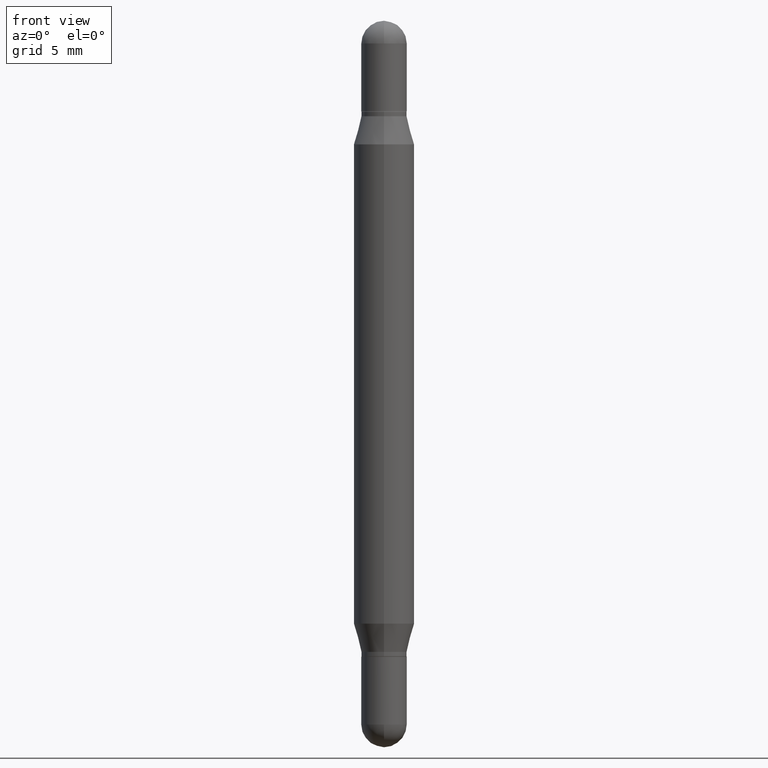
[diagram: clean part render]
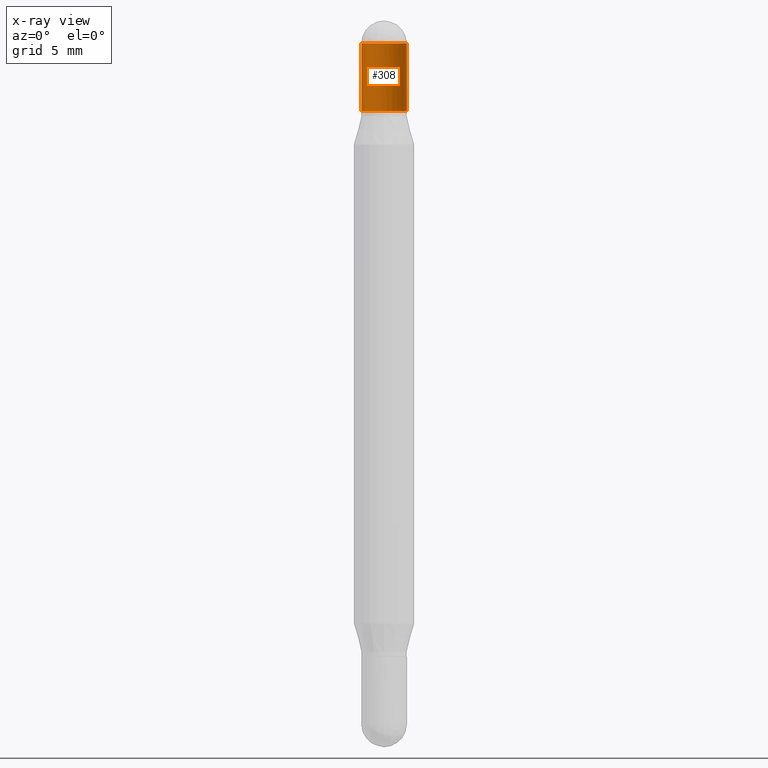
[diagram: x-ray — body ghosted, one internal face saturated and labeled with its STEP entity id]
A machine part, front view, then the same camera in x-ray: the body is ghosted and one INTERNAL B-rep face — a face not visible from any outside direction — is saturated and labeled: STEP entity #308.
In plain terms, the highlighted cylindrical surface (edge-blend (fillet) strip) has radius 1.1913 mm, axis along (-0, -0, -1).
Its self-contained STEP definition (entity closure, byte-faithful):
#2 = VERTEX_POINT ( 'NONE', #241 ) ;
#5 = CARTESIAN_POINT ( 'NONE',  ( 0.04689999999999999725, -7.433420153955320943E-16, -0.04690000000000053154 ) ) ;
#26 = VERTEX_POINT ( 'NONE', #64 ) ;
#59 = EDGE_CURVE ( 'NONE', #2, #26, #930, .T. ) ;
#64 = CARTESIAN_POINT ( 'NONE',  ( -0.04689999999999999725, -9.408370971656128076E-17, -0.04690000000000053154 ) ) ;
#78 = CARTESIAN_POINT ( 'NONE',  ( 3.553510722267622201E-29, -1.720940724002502970E-16, -0.04690000000000053154 ) ) ;
#97 = DIRECTION ( 'NONE',  ( 1.000000000000000000, -6.982962677686266711E-15, 0.000000000000000000 ) ) ;
#109 = CARTESIAN_POINT ( 'NONE',  ( 3.210900542521084585E-29, -6.595880592238425060E-16, -0.1870000000000002216 ) ) ;
#116 = CARTESIAN_POINT ( 'NONE',  ( 0.04689999999999999725, -5.555822803949218252E-15, -1.500000000000000444 ) ) ;
#153 = VERTEX_POINT ( 'NONE', #259 ) ;
#157 = AXIS2_PLACEMENT_3D ( 'NONE', #324, #624, #822 ) ;
#172 = EDGE_CURVE ( 'NONE', #204, #2, #607, .T. ) ;
#187 = VERTEX_POINT ( 'NONE', #671 ) ;
#204 = VERTEX_POINT ( 'NONE', #5 ) ;
#205 = CARTESIAN_POINT ( 'NONE',  ( -0.04689999999999999725, -4.906564498270247118E-15, -1.500000000000000444 ) ) ;
#224 = CYLINDRICAL_SURFACE ( 'NONE', #872, 0.04689999999999999725 ) ;
#228 = ORIENTED_EDGE ( 'NONE', *, *, #59, .F. ) ;
#241 = CARTESIAN_POINT ( 'NONE',  ( 3.217573560955207797E-16, 0.04689999999999990010, -0.04690000000000069114 ) ) ;
#257 = ORIENTED_EDGE ( 'NONE', *, *, #616, .T. ) ;
#259 = CARTESIAN_POINT ( 'NONE',  ( 0.04689999999999999725, -9.870890088073285070E-16, -0.1870000000000002216 ) ) ;
#308 = ADVANCED_FACE ( 'NONE', ( #647 ), #224, .T. ) ;
#312 = DIRECTION ( 'NONE',  ( -2.445468806185136597E-29, -3.479614466977828254E-15, -1.000000000000000000 ) ) ;
#324 = CARTESIAN_POINT ( 'NONE',  ( 3.553510722267622201E-29, -1.720940724002502970E-16, -0.04690000000000053154 ) ) ;
#345 = DIRECTION ( 'NONE',  ( 2.445468806185136597E-29, 3.479614466977828254E-15, 1.000000000000000000 ) ) ;
#391 = EDGE_CURVE ( 'NONE', #26, #187, #468, .T. ) ;
#459 = DIRECTION ( 'NONE',  ( -2.445468806185136877E-29, -3.479614466977828648E-15, -1.000000000000000000 ) ) ;
#461 = CIRCLE ( 'NONE', #891, 0.04689999999999999725 ) ;
#468 = LINE ( 'NONE', #205, #564 ) ;
#528 = AXIS2_PLACEMENT_3D ( 'NONE', #78, #345, #933 ) ;
#559 = DIRECTION ( 'NONE',  ( 1.000000000000000000, -6.982962677686277755E-15, 0.000000000000000000 ) ) ;
#564 = VECTOR ( 'NONE', #718, 39.37007874015748143 ) ;
#593 = ORIENTED_EDGE ( 'NONE', *, *, #172, .F. ) ;
#607 = CIRCLE ( 'NONE', #528, 0.04689999999999999725 ) ;
#616 = EDGE_CURVE ( 'NONE', #153, #187, #461, .T. ) ;
#624 = DIRECTION ( 'NONE',  ( 2.445468806185136597E-29, 3.479614466977828254E-15, 1.000000000000000000 ) ) ;
#632 = CARTESIAN_POINT ( 'NONE',  ( 0.000000000000000000, -5.228321854365732350E-15, -1.500000000000000444 ) ) ;
#647 = FACE_OUTER_BOUND ( 'NONE', #657, .T. ) ;
#651 = LINE ( 'NONE', #116, #677 ) ;
#657 = EDGE_LOOP ( 'NONE', ( #860, #228, #593, #1106, #257 ) ) ;
#671 = CARTESIAN_POINT ( 'NONE',  ( -0.04689999999999999725, -9.408370971656158891E-17, -0.1870000000000002216 ) ) ;
#677 = VECTOR ( 'NONE', #459, 39.37007874015748143 ) ;
#685 = DIRECTION ( 'NONE',  ( 2.445468806185136597E-29, 3.479614466977828254E-15, 1.000000000000000000 ) ) ;
#718 = DIRECTION ( 'NONE',  ( -2.445468806185136877E-29, -3.479614466977828648E-15, -1.000000000000000000 ) ) ;
#822 = DIRECTION ( 'NONE',  ( 1.000000000000000000, -6.982962677686266711E-15, 0.000000000000000000 ) ) ;
#830 = EDGE_CURVE ( 'NONE', #204, #153, #651, .T. ) ;
#860 = ORIENTED_EDGE ( 'NONE', *, *, #391, .F. ) ;
#872 = AXIS2_PLACEMENT_3D ( 'NONE', #632, #312, #559 ) ;
#891 = AXIS2_PLACEMENT_3D ( 'NONE', #109, #685, #97 ) ;
#930 = CIRCLE ( 'NONE', #157, 0.04689999999999999725 ) ;
#933 = DIRECTION ( 'NONE',  ( 1.000000000000000000, -6.982962677686266711E-15, 0.000000000000000000 ) ) ;
#1106 = ORIENTED_EDGE ( 'NONE', *, *, #830, .T. ) ;